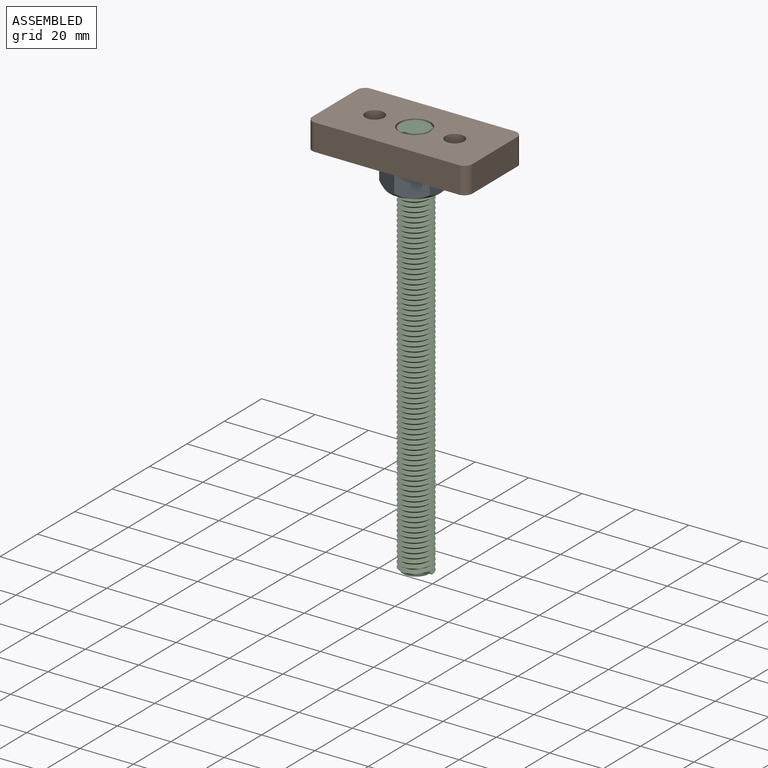
[diagram: assembled view]
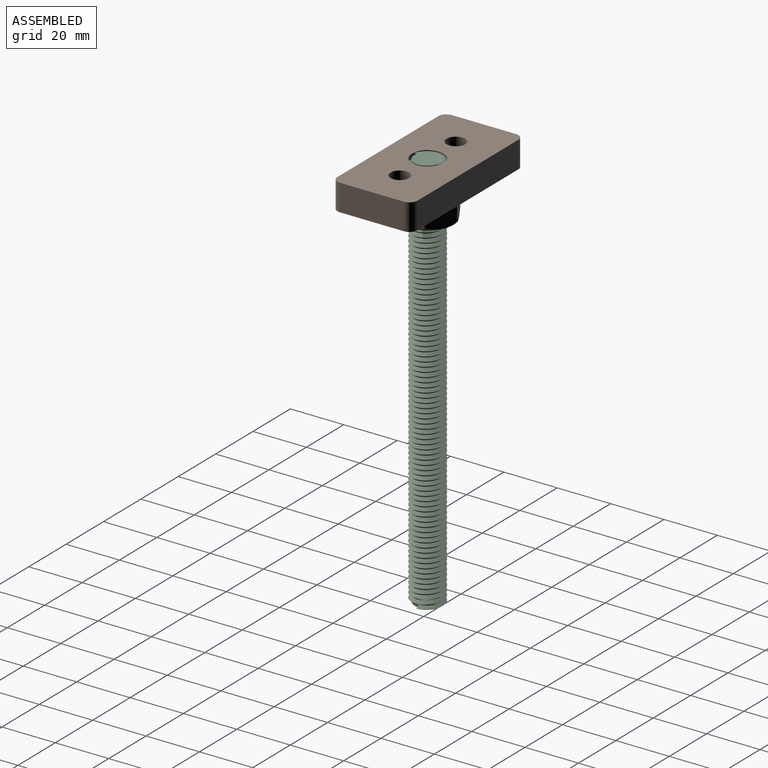
[diagram: assembled view, second angle]
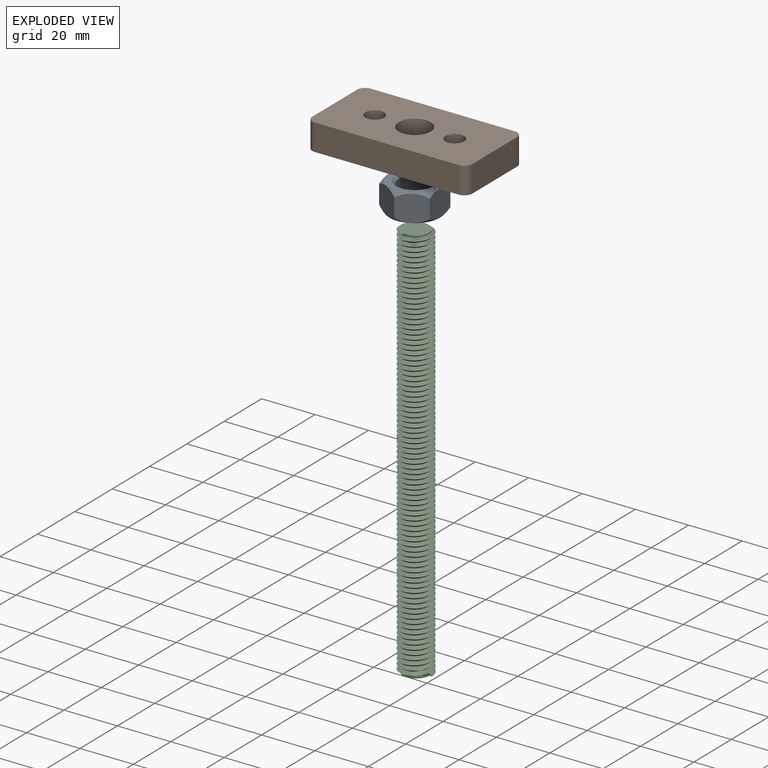
[diagram: exploded view]
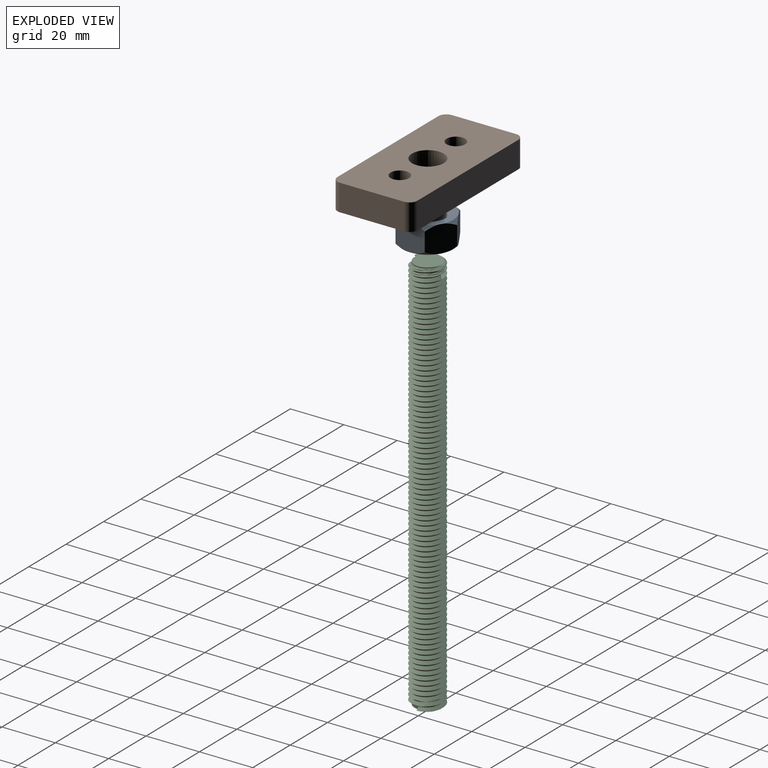
[diagram: exploded view, second angle]
ASSEMBLY  parts=3 mates=2
PART A: 23 faces, bbox 21.9x21.9x10 mm
  f0: plane 19x19mm, normal (0,0,1), area 129.6mm2, adj f5,f6,f8,f10,f12,f14,f22
  f1: plane 19x19mm, normal (0,0,-1), area 129.6mm2, adj f3,f4,f7,f9,f11,f13,f21
  f2: cylinder r=6mm len=12mm, axis (0,0,-1), area 301.6mm2, adj f21,f22
  f3: cone r=11mm half-angle=45deg, axis (0,0,1), area 6.9mm2, adj f1,f15,f16
  f4: cone r=11mm half-angle=45deg, axis (0,0,1), area 6.9mm2, adj f1,f15,f20
  f5: cone r=11mm half-angle=45deg, axis (0,0,-1), area 6.9mm2, adj f0,f15,f16
  f6: cone r=11mm half-angle=45deg, axis (0,0,-1), area 6.9mm2, adj f0,f15,f20
  f7: cone r=11mm half-angle=45deg, axis (0,0,1), area 6.9mm2, adj f1,f16,f17
  f8: cone r=11mm half-angle=45deg, axis (0,0,-1), area 6.9mm2, adj f0,f16,f17
  f9: cone r=11mm half-angle=45deg, axis (0,0,1), area 6.9mm2, adj f1,f17,f18
  f10: cone r=11mm half-angle=45deg, axis (0,0,-1), area 6.9mm2, adj f0,f17,f18
  f11: cone r=11mm half-angle=45deg, axis (0,0,1), area 6.9mm2, adj f1,f18,f19
  f12: cone r=11mm half-angle=45deg, axis (0,0,-1), area 6.9mm2, adj f0,f18,f19
  f13: cone r=11mm half-angle=45deg, axis (0,0,1), area 6.9mm2, adj f1,f19,f20
  f14: cone r=11mm half-angle=45deg, axis (0,0,-1), area 6.9mm2, adj f0,f19,f20
  f15: plane 10.01x9.5mm, normal (0.5,0.87,0), area 98.6mm2, adj f3,f4,f5,f6,f16,f20
  f16: plane 10.99x10.02mm, normal (1,0,0), area 98.6mm2, adj f3,f5,f7,f8,f15,f17
  f17: plane 10.01x9.5mm, normal (0.5,-0.87,0), area 98.6mm2, adj f7,f8,f9,f10,f16,f18
  f18: plane 10.01x9.5mm, normal (-0.5,-0.87,0), area 98.6mm2, adj f9,f10,f11,f12,f17,f19
  f19: plane 10.99x10.02mm, normal (-1,0,0), area 98.6mm2, adj f11,f12,f13,f14,f18,f20
  f20: plane 10.01x9.5mm, normal (-0.5,0.87,0), area 98.6mm2, adj f4,f6,f13,f14,f15,f19
  f21: cone r=7mm half-angle=45deg, axis (0,0,-1), area 57.8mm2, adj f1,f2
  f22: cone r=6mm half-angle=45deg, axis (0,0,1), area 57.8mm2, adj f0,f2
PART B: 15 faces, bbox 60x30x10 mm
  f0: plane 54x10mm, normal (0,1,0), area 540mm2, adj f7,f8,f11,f14
  f1: plane 24x10mm, normal (-1,0,0), area 240mm2, adj f7,f8,f11,f12
  f2: plane 54x10mm, normal (0,-1,0), area 540mm2, adj f7,f8,f12,f13
  f3: cylinder r=6mm len=12mm, axis (0,0,-1), area 377mm2, adj f7,f8
  f4: cylinder r=3.5mm len=7mm, axis (0,0,-1), area 153.9mm2, adj f7,f10
  f5: cylinder r=3.5mm len=7mm, axis (0,0,-1), area 153.9mm2, adj f7,f9
  f6: plane 24x10mm, normal (1,0,0), area 240mm2, adj f7,f8,f13,f14
  f7: plane 60x30mm, normal (0,0,1), area 1602.2mm2, adj f0,f1,f2,f3,f4,f5,f6,f11
  f8: plane 60x30mm, normal (0,0,-1), area 1413.7mm2, adj f0,f1,f2,f3,f6,f9,f10,f11
  f9: cone r=3.5mm half-angle=45deg, axis (0,0,-1), area 133.3mm2, adj f5,f8
  f10: cone r=6.5mm half-angle=45deg, axis (0,0,-1), area 133.3mm2, adj f4,f8
  f11: cylinder r=3mm len=10mm, axis (0,0,1), area 47.1mm2, adj f0,f1,f7,f8
  f12: cylinder r=3mm len=10mm, axis (0,0,-1), area 47.1mm2, adj f1,f2,f7,f8
  f13: cylinder r=3mm len=10mm, axis (0,0,1), area 47.1mm2, adj f2,f6,f7,f8
  f14: cylinder r=3mm len=10mm, axis (0,0,-1), area 47.1mm2, adj f0,f6,f7,f8
PART C: 7 faces, bbox 12.9x14.7x152.8 mm
  f0: plane 1.08x0.87mm, normal (0,-1,0), area 0.5mm2, adj f2,f4,f6
  f1: bspline ~151.08x13.86mm, area 4068mm2, adj f2,f4,f5,f6
  f2: cylinder r=4.92mm len=150mm, axis (0,0,-1), area -4.4mm2, adj f0,f1,f3,f4,f5,f6
  f3: plane 11.65x11.26mm, normal (0,0,1), area 85.1mm2, adj f2,f5,f6
  f4: plane 11.8x11.27mm, normal (0,0,-1), area 85.1mm2, adj f0,f1,f2
  f5: plane 1.05x0.87mm, normal (0.97,-0.22,0), area 0.5mm2, adj f1,f2,f3
  f6: bspline ~151.08x13.86mm, area 4050mm2, adj f0,f1,f2,f3
PLACE A t=(-24.78,0.26,6.84)mm
PLACE B t=(-24.78,0.26,16.84)mm
PLACE C t=(-24.38,0.41,-123.16)mm
MATE fastened C.f3 <-> B.f3  axis (0,0,1) through (-24.78,0.26,26.84)mm
MATE fastened A.f3 <-> B.f3  axis (0,0,1) through (-24.78,0.26,16.84)mm
